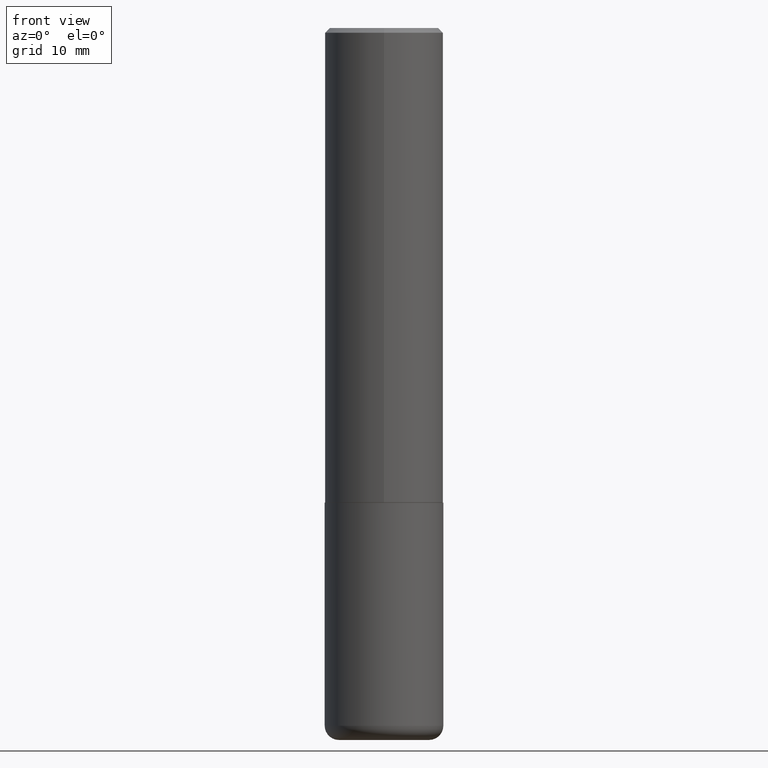
[diagram: clean part render]
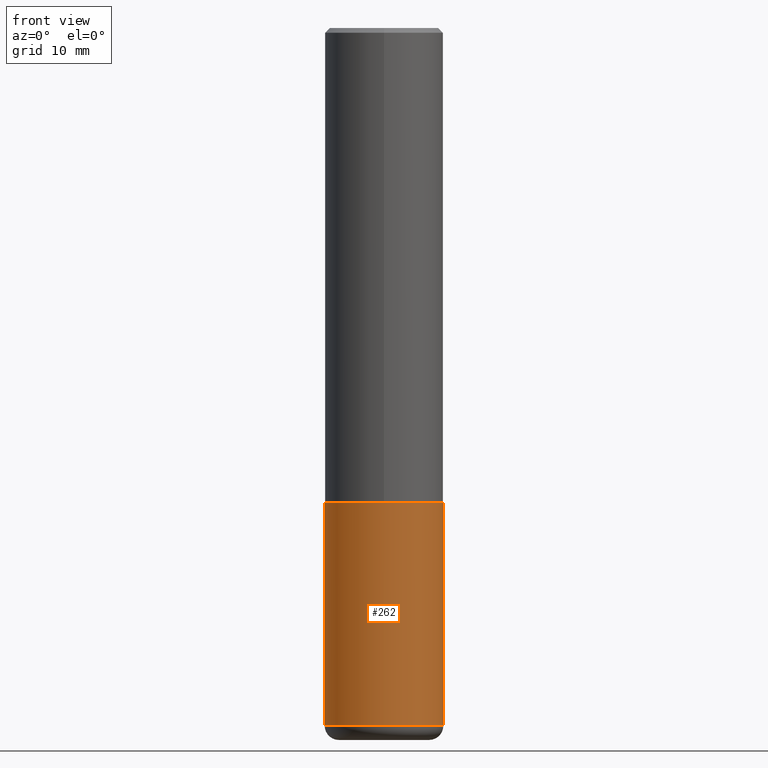
[diagram: same view with one face highlighted and labeled with its STEP entity id]
A machine part, front view. The second image highlights one B-rep face of the part: STEP entity #262.
In plain terms, the highlighted cylindrical surface (partial cylindrical patch) has radius 6.35 mm, axis along (-0, 0, 1).
Its self-contained STEP definition (entity closure, byte-faithful):
#16 = EDGE_LOOP ( 'NONE', ( #126, #335, #345, #102 ) ) ;
#17 = LINE ( 'NONE', #112, #90 ) ;
#18 = CARTESIAN_POINT ( 'NONE',  ( -0.2500000000000000000, 1.776356839400250465E-15, -1.229733772563726445E-29 ) ) ;
#30 = CIRCLE ( 'NONE', #408, 0.2500000000000000000 ) ;
#34 = EDGE_CURVE ( 'NONE', #225, #88, #393, .T. ) ;
#46 = LINE ( 'NONE', #18, #376 ) ;
#70 = EDGE_CURVE ( 'NONE', #305, #198, #30, .T. ) ;
#86 = CARTESIAN_POINT ( 'NONE',  ( 0.2499999999999998335, -1.201069580562041471E-14, -2.940000000000000391 ) ) ;
#88 = VERTEX_POINT ( 'NONE', #86 ) ;
#90 = VECTOR ( 'NONE', #274, 39.37007874015748143 ) ;
#102 = ORIENTED_EDGE ( 'NONE', *, *, #70, .F. ) ;
#112 = CARTESIAN_POINT ( 'NONE',  ( 0.2500000000000000000, -1.745740669421566678E-15, 1.219044193948983948E-29 ) ) ;
#121 = CARTESIAN_POINT ( 'NONE',  ( 0.2500000000000000000, -8.728703347107858632E-15, -2.000000000000000444 ) ) ;
#126 = ORIENTED_EDGE ( 'NONE', *, *, #175, .F. ) ;
#133 = EDGE_CURVE ( 'NONE', #88, #198, #17, .T. ) ;
#137 = AXIS2_PLACEMENT_3D ( 'NONE', #390, #346, #358 ) ;
#146 = DIRECTION ( 'NONE',  ( 1.000000000000000000, -6.982962677686266711E-15, 0.000000000000000000 ) ) ;
#162 = DIRECTION ( 'NONE',  ( 1.000000000000000000, -6.982962677686266711E-15, 4.876176775795935793E-29 ) ) ;
#171 = AXIS2_PLACEMENT_3D ( 'NONE', #186, #340, #162 ) ;
#175 = EDGE_CURVE ( 'NONE', #225, #305, #46, .T. ) ;
#179 = CYLINDRICAL_SURFACE ( 'NONE', #171, 0.2500000000000000000 ) ;
#180 = CARTESIAN_POINT ( 'NONE',  ( 4.890937612370273754E-29, -6.982962677686291954E-15, -2.000000000000000444 ) ) ;
#186 = CARTESIAN_POINT ( 'NONE',  ( 0.000000000000000000, 0.000000000000000000, 0.000000000000000000 ) ) ;
#198 = VERTEX_POINT ( 'NONE', #121 ) ;
#220 = CARTESIAN_POINT ( 'NONE',  ( -0.2500000000000000000, -6.847602067542319531E-15, -2.000000000000000444 ) ) ;
#225 = VERTEX_POINT ( 'NONE', #370 ) ;
#262 = ADVANCED_FACE ( 'NONE', ( #380 ), #179, .T. ) ;
#273 = DIRECTION ( 'NONE',  ( -2.445468806185136597E-29, 3.491481338843145583E-15, 1.000000000000000000 ) ) ;
#274 = DIRECTION ( 'NONE',  ( -2.445468806185136877E-29, 3.491481338843145188E-15, 1.000000000000000000 ) ) ;
#305 = VERTEX_POINT ( 'NONE', #220 ) ;
#335 = ORIENTED_EDGE ( 'NONE', *, *, #34, .T. ) ;
#340 = DIRECTION ( 'NONE',  ( -2.445468806185136597E-29, 3.491481338843145583E-15, 1.000000000000000000 ) ) ;
#345 = ORIENTED_EDGE ( 'NONE', *, *, #133, .T. ) ;
#346 = DIRECTION ( 'NONE',  ( -2.445468806185136597E-29, 3.491481338843145583E-15, 1.000000000000000000 ) ) ;
#358 = DIRECTION ( 'NONE',  ( 1.000000000000000000, -6.982962677686262766E-15, 0.000000000000000000 ) ) ;
#370 = CARTESIAN_POINT ( 'NONE',  ( -0.2499999999999998335, -8.488598296798600727E-15, -2.940000000000000391 ) ) ;
#376 = VECTOR ( 'NONE', #407, 39.37007874015748143 ) ;
#380 = FACE_OUTER_BOUND ( 'NONE', #16, .T. ) ;
#390 = CARTESIAN_POINT ( 'NONE',  ( 7.189678290184301639E-29, -1.026495513619884961E-14, -2.940000000000000391 ) ) ;
#393 = CIRCLE ( 'NONE', #137, 0.2500000000000000000 ) ;
#407 = DIRECTION ( 'NONE',  ( -2.445468806185136877E-29, 3.491481338843145188E-15, 1.000000000000000000 ) ) ;
#408 = AXIS2_PLACEMENT_3D ( 'NONE', #180, #273, #146 ) ;